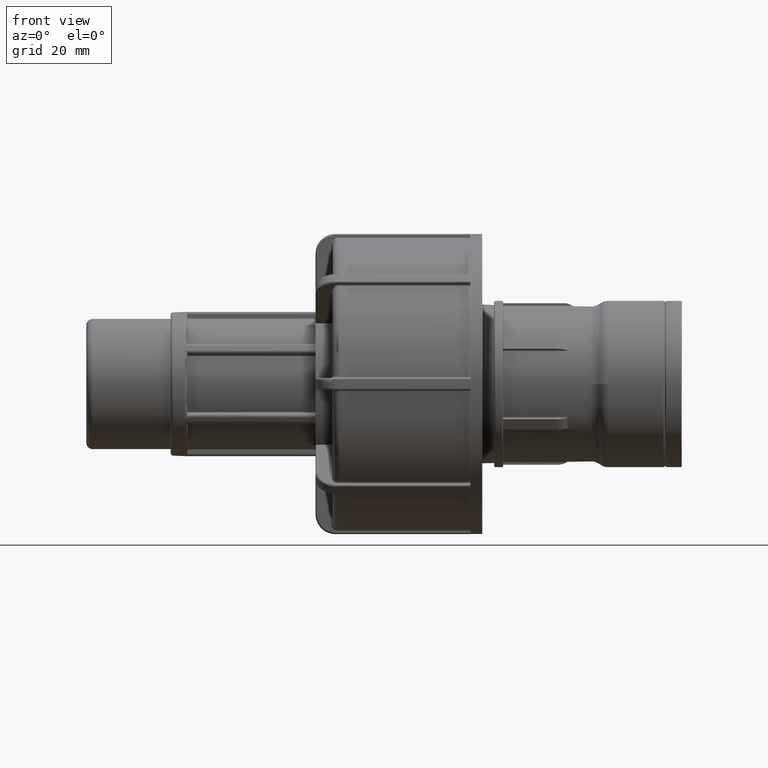
[diagram: clean part render]
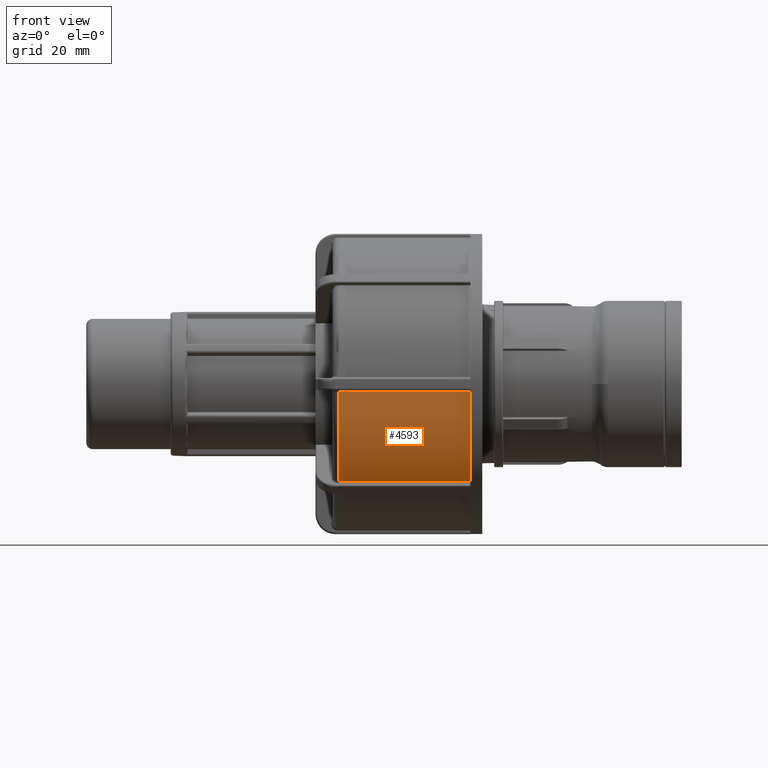
[diagram: same view with one face highlighted and labeled with its STEP entity id]
A machine part, front view. The second image highlights one B-rep face of the part: STEP entity #4593.
In plain terms, the highlighted cylindrical surface (partial cylindrical patch) has radius 29.3425 mm, axis along (1, 0, 0).
Its self-contained STEP definition (entity closure, byte-faithful):
#337=LINE('',#8145,#616);
#358=LINE('',#8408,#637);
#616=VECTOR('',#5834,26.47795);
#637=VECTOR('',#5923,26.47795);
#830=CYLINDRICAL_SURFACE('',#5069,29.3425);
#1078=FACE_OUTER_BOUND('',#1364,.T.);
#1364=EDGE_LOOP('',(#4226,#4227,#4228,#4229));
#1710=CIRCLE('',#4895,29.3425);
#1795=CIRCLE('',#5070,29.3425);
#2124=VERTEX_POINT('',#8129);
#2125=VERTEX_POINT('',#8142);
#2129=VERTEX_POINT('',#8153);
#2154=VERTEX_POINT('',#8406);
#2687=EDGE_CURVE('',#2125,#2124,#337,.T.);
#2693=EDGE_CURVE('',#2129,#2125,#1710,.T.);
#2738=EDGE_CURVE('',#2154,#2129,#358,.T.);
#2933=EDGE_CURVE('',#2124,#2154,#1795,.T.);
#4226=ORIENTED_EDGE('',*,*,#2687,.F.);
#4227=ORIENTED_EDGE('',*,*,#2693,.F.);
#4228=ORIENTED_EDGE('',*,*,#2738,.F.);
#4229=ORIENTED_EDGE('',*,*,#2933,.F.);
#4593=ADVANCED_FACE('',(#1078),#830,.T.);
#4895=AXIS2_PLACEMENT_3D('',#8155,#5844,#5845);
#5069=AXIS2_PLACEMENT_3D('',#9484,#6286,#6287);
#5070=AXIS2_PLACEMENT_3D('',#9485,#6288,#6289);
#5834=DIRECTION('',(-1.,0.,0.));
#5844=DIRECTION('center_axis',(1.,0.,0.));
#5845=DIRECTION('ref_axis',(0.,0.,-1.));
#5923=DIRECTION('',(1.,0.,0.));
#6286=DIRECTION('center_axis',(1.,0.,0.));
#6287=DIRECTION('ref_axis',(0.,1.,0.));
#6288=DIRECTION('center_axis',(-1.,0.,0.));
#6289=DIRECTION('ref_axis',(0.,-1.,1.83697019872103E-16));
#8129=CARTESIAN_POINT('',(-69.07795,-21.7798441429887,-19.662672640237));
#8142=CARTESIAN_POINT('',(-42.6,-21.7798441429886,-19.662672640237));
#8145=CARTESIAN_POINT('',(-56.5,-21.7798441429886,-19.662672640237));
#8153=CARTESIAN_POINT('',(-42.6,-29.3042846468561,-1.4970663265306));
#8155=CARTESIAN_POINT('Origin',(-42.6,0.,0.));
#8406=CARTESIAN_POINT('',(-69.07795,-29.3042846468561,-1.4970663265306));
#8408=CARTESIAN_POINT('',(-56.5,-29.3042846468561,-1.4970663265306));
#9484=CARTESIAN_POINT('Origin',(-56.5,0.,0.));
#9485=CARTESIAN_POINT('Origin',(-69.07795,0.,0.));